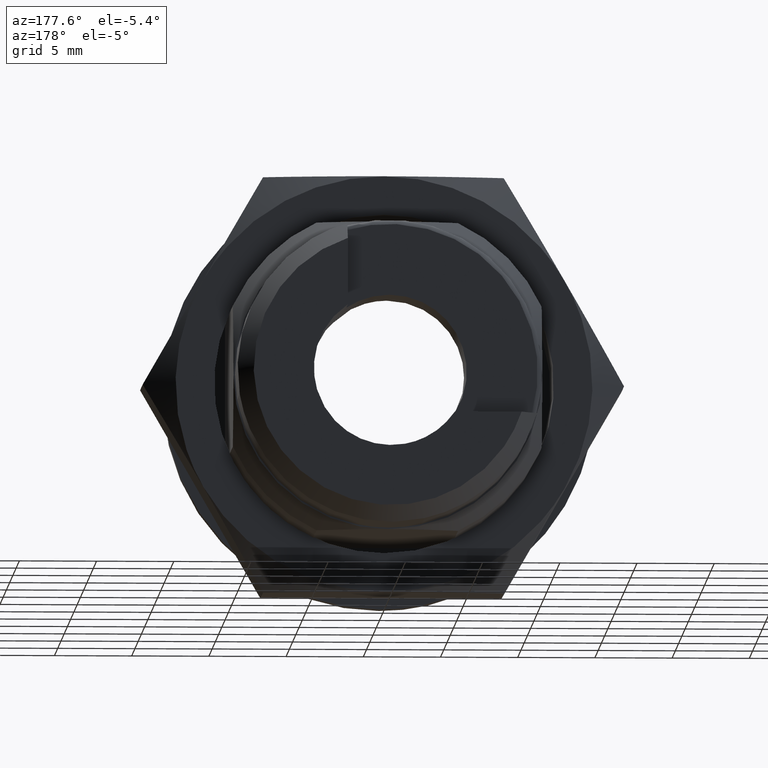
[diagram: clean part render]
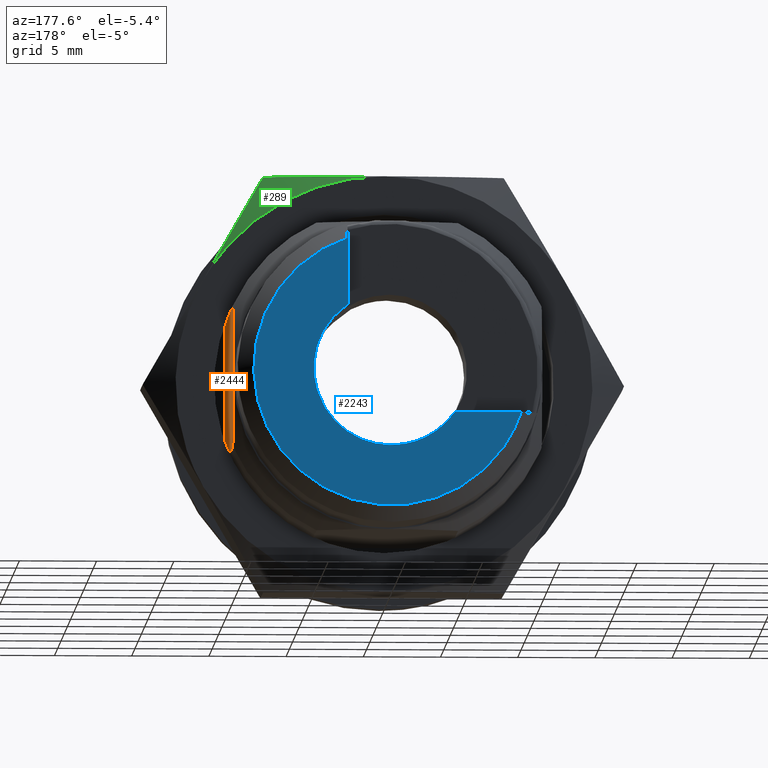
[diagram: same view with three faces highlighted in distinct colors, each labeled with its STEP entity id]
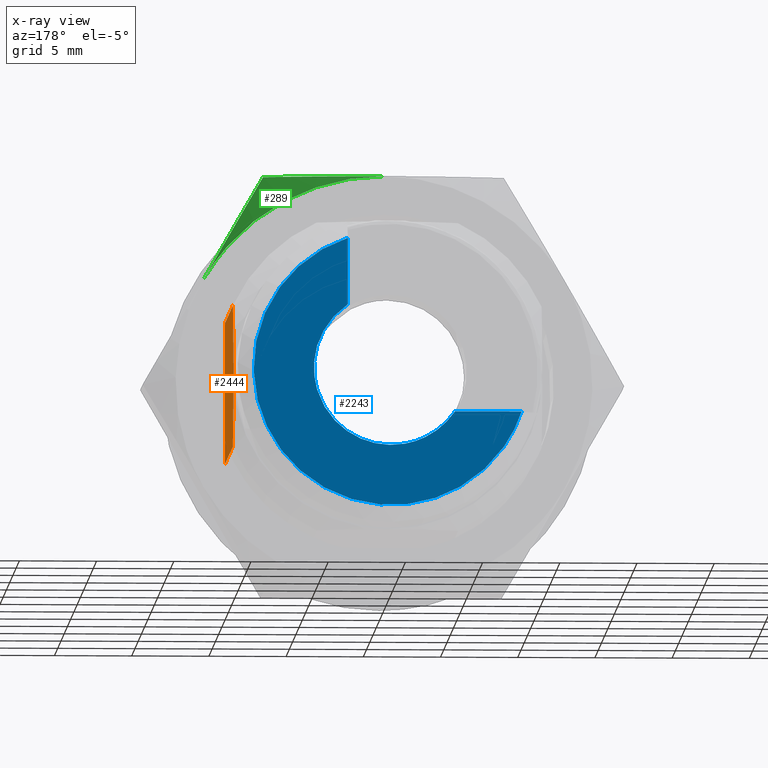
[diagram: x-ray of the same camera — body ghosted, the three highlighted faces saturated]
A machine part, auxiliary view with three faces highlighted in distinct colors.
The next image is the same camera in x-ray (body ghosted, the three faces saturated) — at least one of them is partly hidden behind the body in this view.
Their STEP definitions:

[orange] entity #2444 — the highlighted face is a freeform B-spline surface patch.
#1780=CARTESIAN_POINT('',(12.000000617466640,-10.000000474974501,4.582575912616430));
#1781=VERTEX_POINT('',#1780);
#1795=CARTESIAN_POINT('',(13.000000617466640,-10.000000474974501,0.0));
#1796=VERTEX_POINT('',#1795);
#1797=CARTESIAN_POINT('',(13.000000617466640,-10.000000474974501,0.0));
#1798=CARTESIAN_POINT('',(13.000000617466700,-10.000000522471860,0.396967018372101));
#1799=CARTESIAN_POINT('',(12.976302610151230,-10.000000474974501,0.789816934426930));
#1800=CARTESIAN_POINT('',(12.885204643788651,-10.000000474974501,1.567924338854827));
#1801=CARTESIAN_POINT('',(12.817827896578949,-10.000000474974501,1.953185859866949));
#1802=CARTESIAN_POINT('',(12.644156356845031,-10.000000474974501,2.716947591861388));
#1803=CARTESIAN_POINT('',(12.537881783750700,-10.000000474974501,3.095451315605792));
#1804=CARTESIAN_POINT('',(12.353151121198870,-10.000000474974501,3.658808214837281));
#1805=CARTESIAN_POINT('',(12.287429908930211,-10.000000474974501,3.845606176339826));
#1806=CARTESIAN_POINT('',(12.148933411190191,-10.000000474974501,4.216061590864133));
#1807=CARTESIAN_POINT('',(12.076089840777840,-10.000000474974501,4.399931585029041));
#1808=CARTESIAN_POINT('',(12.000000617466620,-10.000000474974501,4.582575912616421));
#1809=B_SPLINE_CURVE_WITH_KNOTS('',3,(#1797,#1798,#1799,#1800,#1801,#1802,#1803,#1804,#1805,#1806,#1807,#1808),.UNSPECIFIED.,.F.,.U.,(4,2,2,2,2,4),(0.0,0.250000000000000,0.500000000000000,0.750000000000000,0.875000000000000,1.0),.UNSPECIFIED.);
#1810=EDGE_CURVE('',#1796,#1781,#1809,.T.);
#1994=CARTESIAN_POINT('',(12.000000617466620,-10.000000474974501,-4.582575912616610));
#1995=VERTEX_POINT('',#1994);
#1996=CARTESIAN_POINT('',(12.000000617466640,-10.000000474974501,-4.582575912616590));
#1997=CARTESIAN_POINT('',(12.305556186225941,-10.000000474974501,-3.849121305406965));
#1998=CARTESIAN_POINT('',(12.555790636039040,-10.000000474974501,-3.103594640283256));
#1999=CARTESIAN_POINT('',(12.816436500438961,-10.000000474974501,-1.960273782563865));
#2000=CARTESIAN_POINT('',(12.884144898301770,-10.000000474974501,-1.574982816829519));
#2001=CARTESIAN_POINT('',(12.975939409247340,-10.000000474974501,-0.794881722367752));
#2002=CARTESIAN_POINT('',(13.000000664172500,-10.000000474974501,-0.400066169145596));
#2003=CARTESIAN_POINT('',(13.000000617466640,-10.000000474974501,0.0));
#2004=B_SPLINE_CURVE_WITH_KNOTS('',3,(#1996,#1997,#1998,#1999,#2000,#2001,#2002,#2003),.UNSPECIFIED.,.F.,.U.,(4,2,2,4),(0.0,0.500000000000000,0.750000000000000,1.0),.UNSPECIFIED.);
#2005=EDGE_CURVE('',#1995,#1796,#2004,.T.);
#2399=CARTESIAN_POINT('',(0.0,-10.000000474974501,-4.582575912616590));
#2400=VERTEX_POINT('',#2399);
#2401=CARTESIAN_POINT('',(12.000000617466620,-10.000000474974501,-4.582575912616610));
#2402=CARTESIAN_POINT('',(0.0,-10.000000474974501,-4.582575912616590));
#2403=QUASI_UNIFORM_CURVE('',1,(#2401,#2402),.UNSPECIFIED.,.F.,.U.);
#2404=EDGE_CURVE('',#1995,#2400,#2403,.T.);
#2422=CARTESIAN_POINT('',(-0.649350005645934,-10.000000474974501,-5.040375109742910));
#2423=CARTESIAN_POINT('',(-0.649350005645934,-10.000000474974501,5.040374781971358));
#2424=CARTESIAN_POINT('',(13.649350971799761,-10.000000474974501,-5.040375109742910));
#2425=CARTESIAN_POINT('',(13.649350971799761,-10.000000474974501,5.040374781971358));
#2426=B_SPLINE_SURFACE_WITH_KNOTS('',1,1,((#2422,#2424),(#2423,#2425)),.UNSPECIFIED.,.F.,.F.,.U.,(2,2),(2,2),(0.0,10.080749891714269),(0.0,14.298700977445691),.UNSPECIFIED.);
#2427=ORIENTED_EDGE('',*,*,#2404,.F.);
#2428=ORIENTED_EDGE('',*,*,#2005,.T.);
#2429=ORIENTED_EDGE('',*,*,#1810,.T.);
#2430=CARTESIAN_POINT('',(0.0,-10.000000474974501,4.582575912616430));
#2431=VERTEX_POINT('',#2430);
#2432=CARTESIAN_POINT('',(12.000000617466640,-10.000000474974501,4.582575912616430));
#2433=CARTESIAN_POINT('',(0.0,-10.000000474974501,4.582575912616430));
#2434=QUASI_UNIFORM_CURVE('',1,(#2432,#2433),.UNSPECIFIED.,.F.,.U.);
#2435=EDGE_CURVE('',#1781,#2431,#2434,.T.);
#2436=ORIENTED_EDGE('',*,*,#2435,.T.);
#2437=CARTESIAN_POINT('',(0.0,-10.000000474974501,4.582575912616430));
#2438=CARTESIAN_POINT('',(0.0,-10.000000474974501,-4.582575912616590));
#2439=QUASI_UNIFORM_CURVE('',1,(#2437,#2438),.UNSPECIFIED.,.F.,.U.);
#2440=EDGE_CURVE('',#2431,#2400,#2439,.T.);
#2441=ORIENTED_EDGE('',*,*,#2440,.T.);
#2442=EDGE_LOOP('',(#2427,#2428,#2429,#2436,#2441));
#2443=FACE_OUTER_BOUND('',#2442,.T.);
#2444=ADVANCED_FACE('',(#2443),#2426,.F.);

[blue] entity #2243 — the highlighted face is a freeform B-spline surface patch.
#1567=CARTESIAN_POINT('',(18.000000854954099,-4.795482106365370,-1.415398792680822));
#1568=VERTEX_POINT('',#1567);
#1569=CARTESIAN_POINT('',(18.000000854954099,2.230674737914593,-4.474828777562368));
#1570=VERTEX_POINT('',#1569);
#1571=CARTESIAN_POINT('',(18.000000854954102,-4.795482106365370,-1.415398792680822));
#1572=CARTESIAN_POINT('',(18.000000854954095,-3.941592126456115,-4.308445007411390));
#1573=CARTESIAN_POINT('',(18.000000854954099,-0.984174483688723,-4.902183489071853));
#1574=CARTESIAN_POINT('',(18.000000854954102,0.696508054189221,-5.239601472843377));
#1575=CARTESIAN_POINT('',(18.000000854954099,2.230674737914593,-4.474828777562368));
#1583=(BOUNDED_CURVE()B_SPLINE_CURVE(2,(#1571,#1572,#1573,#1574,#1575),.UNSPECIFIED.,.F.,.U.)B_SPLINE_CURVE_WITH_KNOTS((3,2,3),(0.359729076489307,0.666666666666667,0.853543812067325),.UNSPECIFIED.)CURVE()GEOMETRIC_REPRESENTATION_ITEM()RATIONAL_B_SPLINE_CURVE((0.975566618637623,0.845723978938577,1.0,0.906069952516826,0.917460179879674))REPRESENTATION_ITEM(''));
#1584=EDGE_CURVE('',#1568,#1570,#1583,.T.);
#1653=CARTESIAN_POINT('',(18.000000854954099,4.142463232198010,-2.800000132992905));
#1654=VERTEX_POINT('',#1653);
#1655=CARTESIAN_POINT('',(18.000000854954099,2.230674737914593,-4.474828777562368));
#1656=CARTESIAN_POINT('',(18.000000854954099,3.406637262396761,-3.888618661714181));
#1657=CARTESIAN_POINT('',(18.000000854954099,4.142463232198008,-2.800000132992906));
#1665=(BOUNDED_CURVE()B_SPLINE_CURVE(2,(#1655,#1656,#1657),.UNSPECIFIED.,.F.,.U.)B_SPLINE_CURVE_WITH_KNOTS((3,3),(0.853543812067325,1.0),.UNSPECIFIED.)CURVE()GEOMETRIC_REPRESENTATION_ITEM()RATIONAL_B_SPLINE_CURVE((0.917460179879674,0.926386735749697,1.0))REPRESENTATION_ITEM(''));
#1666=EDGE_CURVE('',#1570,#1654,#1665,.T.);
#1692=CARTESIAN_POINT('',(18.000000854954099,-2.800000132992810,4.142463232198075));
#1693=VERTEX_POINT('',#1692);
#1699=CARTESIAN_POINT('',(18.000000854954099,-2.800000132992808,4.142463232198074));
#1700=CARTESIAN_POINT('',(18.000000854954095,-5.557258241202856,2.278759769563579));
#1701=CARTESIAN_POINT('',(18.000000854954099,-4.902183489071877,-0.984174483688607));
#1702=CARTESIAN_POINT('',(18.000000854954099,-4.858420383664534,-1.202158973546877));
#1703=CARTESIAN_POINT('',(18.000000854954099,-4.795482106365370,-1.415398792680822));
#1711=(BOUNDED_CURVE()B_SPLINE_CURVE(2,(#1699,#1700,#1701,#1702,#1703),.UNSPECIFIED.,.F.,.U.)B_SPLINE_CURVE_WITH_KNOTS((3,2,3),(0.0,0.333333333333333,0.359729076489307),.UNSPECIFIED.)CURVE()GEOMETRIC_REPRESENTATION_ITEM()RATIONAL_B_SPLINE_CURVE((1.0,0.832456688266523,1.0,0.986732709327946,0.975566618637623))REPRESENTATION_ITEM(''));
#1712=EDGE_CURVE('',#1693,#1568,#1711,.T.);
#2181=CARTESIAN_POINT('',(18.000000854954099,-2.800000132992805,8.448077155497670));
#2182=VERTEX_POINT('',#2181);
#2193=CARTESIAN_POINT('',(18.000000854954099,8.448077155497641,-2.800000132992905));
#2194=VERTEX_POINT('',#2193);
#2202=CARTESIAN_POINT('',(18.000000854954099,-2.800000132992810,8.448077155497698));
#2203=CARTESIAN_POINT('',(18.000000854954095,-9.613731004548360,6.189758842895973));
#2204=CARTESIAN_POINT('',(18.000000854954099,-8.849403973968432,-0.947659050246220));
#2205=CARTESIAN_POINT('',(18.000000854954095,-8.085076943388504,-8.085076943388408));
#2206=CARTESIAN_POINT('',(18.000000854954099,-0.947659050246326,-8.849403973968421));
#2207=CARTESIAN_POINT('',(18.000000854954095,6.189758842895853,-9.613731004548432));
#2208=CARTESIAN_POINT('',(18.000000854954099,8.448077155497664,-2.800000132992916));
#2216=(BOUNDED_CURVE()B_SPLINE_CURVE(2,(#2202,#2203,#2204,#2205,#2206,#2207,#2208),.UNSPECIFIED.,.F.,.U.)B_SPLINE_CURVE_WITH_KNOTS((3,2,2,3),(0.0,0.333333333333333,0.666666666666667,1.0),.UNSPECIFIED.)CURVE()GEOMETRIC_REPRESENTATION_ITEM()RATIONAL_B_SPLINE_CURVE((1.0,0.778378576867559,1.0,0.778378576867559,1.0,0.778378576867559,1.0))REPRESENTATION_ITEM(''));
#2217=EDGE_CURVE('',#2182,#2194,#2216,.T.);
#2222=CARTESIAN_POINT('',(18.000000854954099,-9.762590941195345,-9.762590885112372));
#2223=CARTESIAN_POINT('',(18.000000854954099,9.314426339993418,-9.762590885112372));
#2224=CARTESIAN_POINT('',(18.000000854954099,-9.762590941195347,9.314426337325378));
#2225=CARTESIAN_POINT('',(18.000000854954099,9.314426339993418,9.314426337325378));
#2226=B_SPLINE_SURFACE_WITH_KNOTS('',1,1,((#2222,#2224),(#2223,#2225)),.UNSPECIFIED.,.F.,.F.,.U.,(2,2),(2,2),(0.0,19.077017281188770),(0.0,19.077017222437750),.UNSPECIFIED.);
#2227=CARTESIAN_POINT('',(18.000000854954099,-2.800000132992810,4.142463232198075));
#2228=CARTESIAN_POINT('',(18.000000854954099,-2.800000132992805,8.448077155497670));
#2229=QUASI_UNIFORM_CURVE('',1,(#2227,#2228),.UNSPECIFIED.,.F.,.U.);
#2230=EDGE_CURVE('',#1693,#2182,#2229,.T.);
#2231=ORIENTED_EDGE('',*,*,#2230,.T.);
#2232=ORIENTED_EDGE('',*,*,#2217,.T.);
#2233=CARTESIAN_POINT('',(18.000000854954099,8.448077155497641,-2.800000132992905));
#2234=CARTESIAN_POINT('',(18.000000854954099,4.142463232198010,-2.800000132992905));
#2235=QUASI_UNIFORM_CURVE('',1,(#2233,#2234),.UNSPECIFIED.,.F.,.U.);
#2236=EDGE_CURVE('',#2194,#1654,#2235,.T.);
#2237=ORIENTED_EDGE('',*,*,#2236,.T.);
#2238=ORIENTED_EDGE('',*,*,#1666,.F.);
#2239=ORIENTED_EDGE('',*,*,#1584,.F.);
#2240=ORIENTED_EDGE('',*,*,#1712,.F.);
#2241=EDGE_LOOP('',(#2231,#2232,#2237,#2238,#2239,#2240));
#2242=FACE_OUTER_BOUND('',#2241,.T.);
#2243=ADVANCED_FACE('',(#2242),#2226,.T.);

[green] entity #289 — the highlighted face is a freeform B-spline surface patch.
#226=CARTESIAN_POINT('',(7.025000333669612,0.352022082927874,13.443180985537300));
#227=CARTESIAN_POINT('',(5.974375283767536,0.409459163903069,15.636614614497191));
#228=CARTESIAN_POINT('',(7.025000333669612,-8.107570082703683,13.664703202493959));
#229=CARTESIAN_POINT('',(5.974375283767537,-9.430427886052716,15.894281125037143));
#230=CARTESIAN_POINT('',(7.025000333669612,-11.967455220732406,6.133763126869590));
#231=CARTESIAN_POINT('',(5.974375283767538,-13.920104579724644,7.134568094758091));
#239=(BOUNDED_SURFACE()B_SPLINE_SURFACE(1,2,((#226,#228,#230),(#227,#229,#231)),.UNSPECIFIED.,.F.,.F.,.U.)B_SPLINE_SURFACE_WITH_KNOTS((2,2),(3,3),(0.0,2.432748054855835),(0.0,18.048325100103991),.UNSPECIFIED.)GEOMETRIC_REPRESENTATION_ITEM()RATIONAL_B_SPLINE_SURFACE(((1.0,0.842884116758207,0.991792998526408),(1.0,0.842884116758207,0.991792998526408)))REPRESENTATION_ITEM('')SURFACE());
#240=CARTESIAN_POINT('',(7.000000332482160,0.0,13.500000641215440));
#241=VERTEX_POINT('',#240);
#242=CARTESIAN_POINT('',(7.000000332482160,-11.691343506398701,6.750000320607900));
#243=VERTEX_POINT('',#242);
#244=CARTESIAN_POINT('',(7.000000332482160,0.0,13.500000641215440));
#245=CARTESIAN_POINT('',(7.000000332482190,-7.794229004265700,13.500000641215404));
#246=CARTESIAN_POINT('',(7.000000332482160,-11.691343506398701,6.750000320607900));
#254=(BOUNDED_CURVE()B_SPLINE_CURVE(2,(#244,#245,#246),.UNSPECIFIED.,.F.,.U.)CURVE()GEOMETRIC_REPRESENTATION_ITEM()QUASI_UNIFORM_CURVE()RATIONAL_B_SPLINE_CURVE((1.0,0.866025403784442,1.0))REPRESENTATION_ITEM(''));
#255=EDGE_CURVE('',#241,#243,#254,.T.);
#256=ORIENTED_EDGE('',*,*,#255,.F.);
#257=CARTESIAN_POINT('',(6.000000284984660,-7.794229004266430,13.500000641215600));
#258=VERTEX_POINT('',#257);
#259=CARTESIAN_POINT('',(6.000000284984673,-7.794229004266432,13.500000641215600));
#260=CARTESIAN_POINT('',(6.153221032773129,-7.154239035575253,13.500000641215600));
#261=CARTESIAN_POINT('',(6.293338654547712,-6.510028771841531,13.500000641215610));
#262=CARTESIAN_POINT('',(6.541005635128911,-5.211118558279132,13.500000641215600));
#263=CARTESIAN_POINT('',(6.647614333566826,-4.560968621091304,13.500000641215600));
#264=CARTESIAN_POINT('',(6.820928549973280,-3.260028200052457,13.500000641215610));
#265=CARTESIAN_POINT('',(6.887625316711800,-2.609092593655658,13.500000641215600));
#266=CARTESIAN_POINT('',(6.977154559102132,-1.306198639829702,13.500000641215600));
#267=CARTESIAN_POINT('',(6.999959780945576,-0.654239656949994,13.500000641215600));
#268=CARTESIAN_POINT('',(7.000000314380704,-0.001166594500885,13.500000641215600));
#269=CARTESIAN_POINT('',(7.000000332389045,-0.000583297460168,13.500000641215600));
#270=CARTESIAN_POINT('',(7.000000332482160,0.0,13.500000641215440));
#271=B_SPLINE_CURVE_WITH_KNOTS('',3,(#259,#260,#261,#262,#263,#264,#265,#266,#267,#268,#269,#270),.UNSPECIFIED.,.F.,.U.,(4,2,2,2,2,4),(0.0,0.125000000000000,0.250000000000000,0.375000000000000,0.500000000000000,0.500111744399499),.UNSPECIFIED.);
#272=EDGE_CURVE('',#258,#241,#271,.T.);
#273=ORIENTED_EDGE('',*,*,#272,.F.);
#274=CARTESIAN_POINT('',(7.000000332482160,-11.691343506398701,6.750000320607900));
#275=CARTESIAN_POINT('',(6.999996178578984,-11.371065601280980,7.304737924814101));
#276=CARTESIAN_POINT('',(6.978060914118199,-11.049993541268799,7.860851045645979));
#277=CARTESIAN_POINT('',(6.912341159283296,-10.564197363726290,8.702274707272323));
#278=CARTESIAN_POINT('',(6.884579602116851,-10.400053455013859,8.986580296915200));
#279=CARTESIAN_POINT('',(6.818227561830734,-10.071373509740431,9.555870661557727));
#280=CARTESIAN_POINT('',(6.779597955332064,-9.906736349135342,9.841030588539594));
#281=CARTESIAN_POINT('',(6.561822499912641,-9.086820292615515,11.261166856373389));
#282=CARTESIAN_POINT('',(6.308277462346537,-8.438052715922780,12.384865261508519));
#283=CARTESIAN_POINT('',(6.000000284984660,-7.794229004266430,13.500000641215600));
#284=B_SPLINE_CURVE_WITH_KNOTS('',3,(#274,#275,#276,#277,#278,#279,#280,#281,#282,#283),.UNSPECIFIED.,.F.,.U.,(4,2,2,2,4),(0.502298468009165,0.625000000000001,0.687500000000001,0.750000000000001,1.0),.UNSPECIFIED.);
#285=EDGE_CURVE('',#243,#258,#284,.T.);
#286=ORIENTED_EDGE('',*,*,#285,.F.);
#287=EDGE_LOOP('',(#256,#273,#286));
#288=FACE_OUTER_BOUND('',#287,.T.);
#289=ADVANCED_FACE('',(#288),#239,.T.);